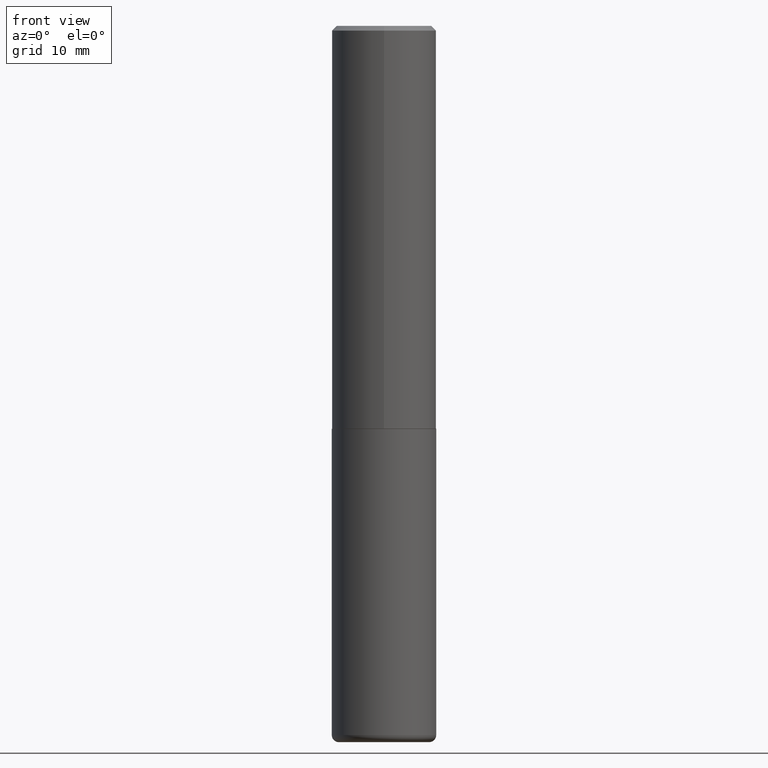
[diagram: clean part render]
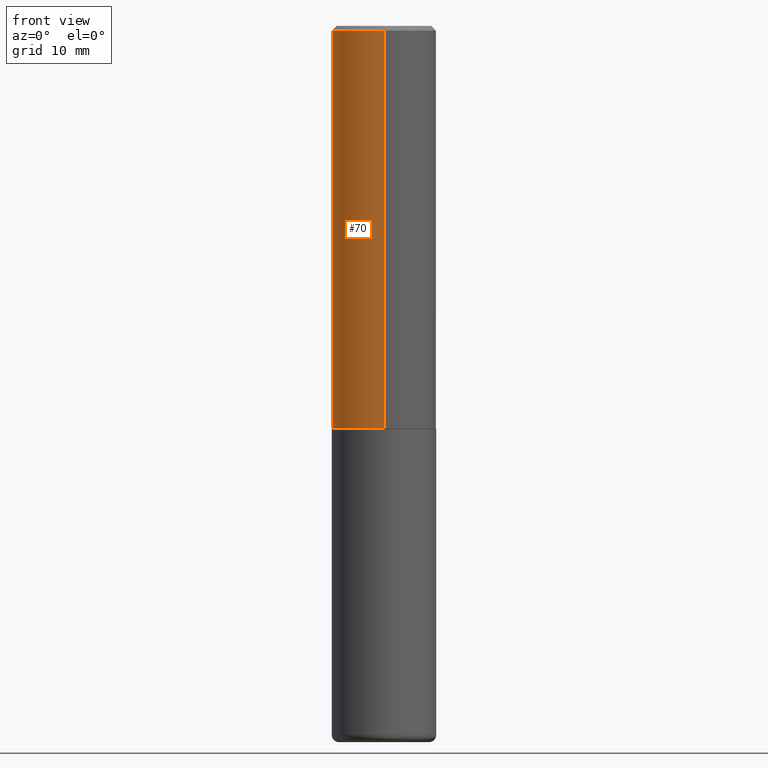
[diagram: same view with one face highlighted and labeled with its STEP entity id]
A machine part, front view. The second image highlights one B-rep face of the part: STEP entity #70.
In plain terms, the highlighted cylindrical surface (partial cylindrical patch) has radius 5.5563 mm, axis along (-0, 0, 1).
Its self-contained STEP definition (entity closure, byte-faithful):
#38 = CARTESIAN_POINT ( 'NONE',  ( 1.554312234475219551E-15, 0.2187500000000000833, -7.638914168873387857E-16 ) ) ;
#45 = VERTEX_POINT ( 'NONE', #187 ) ;
#69 = ORIENTED_EDGE ( 'NONE', *, *, #362, .T. ) ;
#70 = ADVANCED_FACE ( 'NONE', ( #244 ), #404, .T. ) ;
#74 = CARTESIAN_POINT ( 'NONE',  ( -1.527523085743871237E-15, -0.2187500000000000833, 7.638914168873387857E-16 ) ) ;
#80 = CIRCLE ( 'NONE', #154, 0.2187499999999999445 ) ;
#100 = CARTESIAN_POINT ( 'NONE',  ( -1.527523085743831005E-15, -0.2187500000000061062, -1.686499999999999444 ) ) ;
#104 = DIRECTION ( 'NONE',  ( -2.445054220858351343E-29, 3.492075048627833097E-15, 1.000000000000000000 ) ) ;
#106 = EDGE_LOOP ( 'NONE', ( #230, #151, #69, #393 ) ) ;
#115 = CARTESIAN_POINT ( 'NONE',  ( 0.000000000000000000, 0.000000000000000000, 0.000000000000000000 ) ) ;
#133 = CARTESIAN_POINT ( 'NONE',  ( 1.527523085743870843E-15, 0.2187499999999998890, -0.02000000000000081574 ) ) ;
#151 = ORIENTED_EDGE ( 'NONE', *, *, #242, .T. ) ;
#154 = AXIS2_PLACEMENT_3D ( 'NONE', #258, #104, #251 ) ;
#155 = DIRECTION ( 'NONE',  ( -6.982962677686265922E-15, -1.000000000000000000, 3.746534391310985612E-15 ) ) ;
#170 = DIRECTION ( 'NONE',  ( -2.445054220858351343E-29, 3.492075048627833097E-15, 1.000000000000000000 ) ) ;
#171 = VERTEX_POINT ( 'NONE', #221 ) ;
#186 = DIRECTION ( 'NONE',  ( -2.445054220858351343E-29, 3.492075048627833097E-15, 1.000000000000000000 ) ) ;
#187 = CARTESIAN_POINT ( 'NONE',  ( 1.554312234475240653E-15, 0.2187499999999943101, -1.686500000000000998 ) ) ;
#202 = LINE ( 'NONE', #38, #337 ) ;
#206 = VERTEX_POINT ( 'NONE', #100 ) ;
#221 = CARTESIAN_POINT ( 'NONE',  ( -1.500733937012521346E-15, -0.2187500000000000278, -0.01999999999999928571 ) ) ;
#230 = ORIENTED_EDGE ( 'NONE', *, *, #372, .F. ) ;
#236 = DIRECTION ( 'NONE',  ( -2.445054220858351343E-29, 3.492075048627833097E-15, 1.000000000000000000 ) ) ;
#242 = EDGE_CURVE ( 'NONE', #45, #206, #289, .T. ) ;
#244 = FACE_OUTER_BOUND ( 'NONE', #106, .T. ) ;
#251 = DIRECTION ( 'NONE',  ( -6.982962677686265922E-15, -1.000000000000000000, 3.492862791899308860E-15 ) ) ;
#258 = CARTESIAN_POINT ( 'NONE',  ( 4.890108441716715262E-31, -6.984150097255683598E-17, -0.02000000000000005246 ) ) ;
#282 = AXIS2_PLACEMENT_3D ( 'NONE', #115, #186, #374 ) ;
#287 = EDGE_CURVE ( 'NONE', #357, #171, #80, .T. ) ;
#288 = DIRECTION ( 'NONE',  ( -2.445054220858351343E-29, 3.492075048627833097E-15, 1.000000000000000000 ) ) ;
#289 = CIRCLE ( 'NONE', #301, 0.2187500000000002220 ) ;
#301 = AXIS2_PLACEMENT_3D ( 'NONE', #353, #288, #155 ) ;
#308 = VECTOR ( 'NONE', #236, 39.37007874015748143 ) ;
#330 = LINE ( 'NONE', #74, #308 ) ;
#337 = VECTOR ( 'NONE', #170, 39.37007874015748143 ) ;
#353 = CARTESIAN_POINT ( 'NONE',  ( 4.123583943477609610E-29, -5.889384569510841777E-15, -1.686500000000000110 ) ) ;
#357 = VERTEX_POINT ( 'NONE', #133 ) ;
#362 = EDGE_CURVE ( 'NONE', #206, #171, #330, .T. ) ;
#372 = EDGE_CURVE ( 'NONE', #45, #357, #202, .T. ) ;
#374 = DIRECTION ( 'NONE',  ( -6.982962677686265922E-15, -1.000000000000000000, 3.492075048627833097E-15 ) ) ;
#393 = ORIENTED_EDGE ( 'NONE', *, *, #287, .F. ) ;
#404 = CYLINDRICAL_SURFACE ( 'NONE', #282, 0.2187500000000000833 ) ;